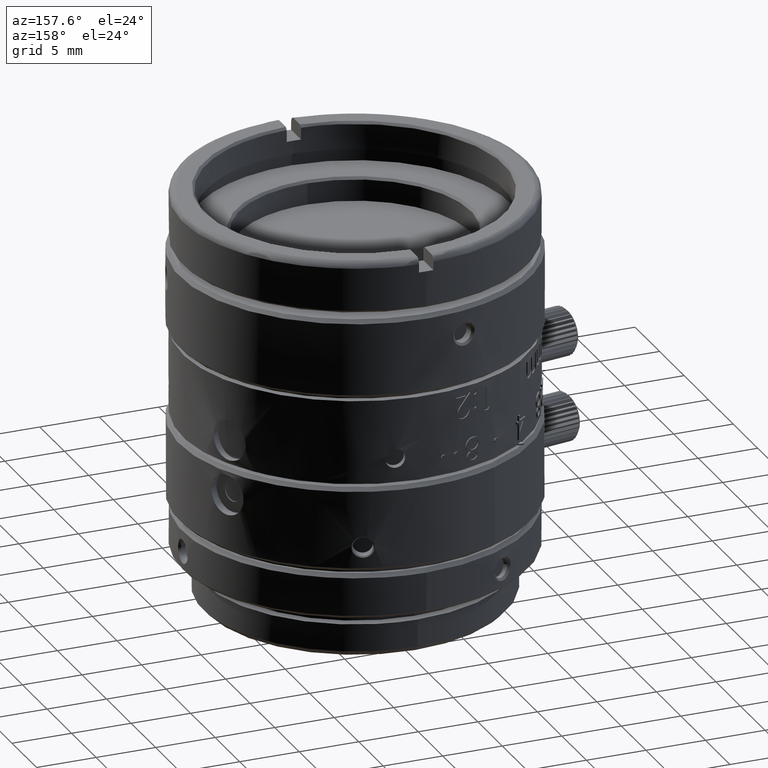
[diagram: clean part render]
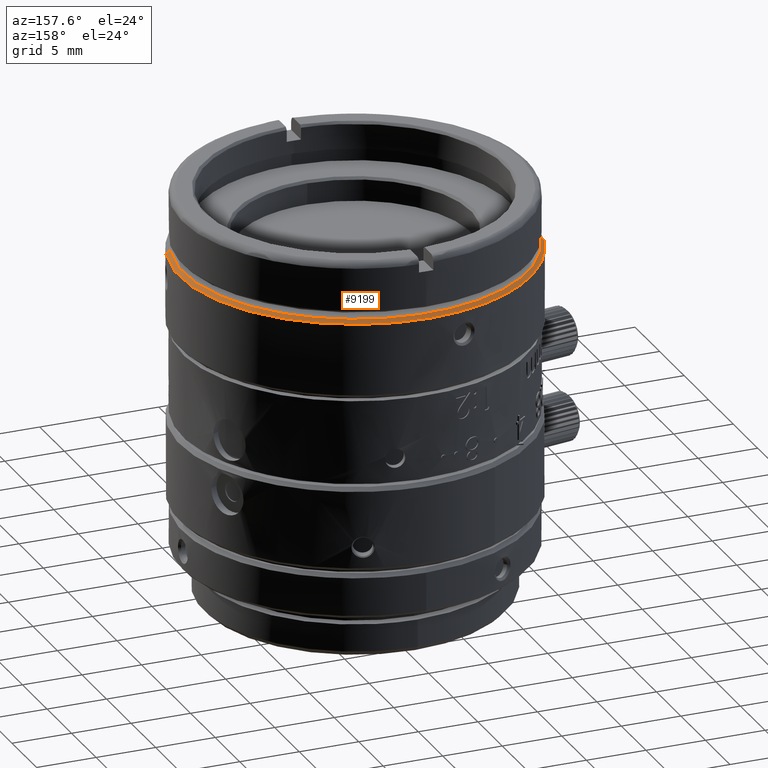
[diagram: same view with one face highlighted and labeled with its STEP entity id]
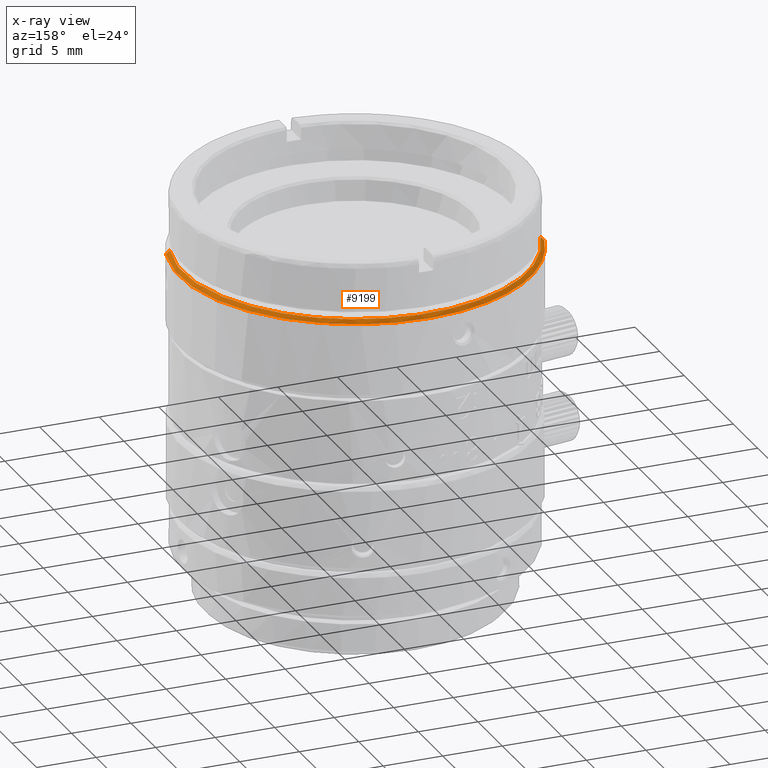
[diagram: x-ray of the same camera — body ghosted, the highlighted face saturated]
A machine part, auxiliary view. The second image highlights one B-rep face of the part: STEP entity #9199.
The next image is the same camera in x-ray: the body ghosted, the highlighted face saturated — about 0% of this face is hidden behind the body in this view.
In plain terms, the highlighted face is a freeform B-spline surface patch.
Its self-contained STEP definition (entity closure, byte-faithful):
#8 = CARTESIAN_POINT ( 'NONE',  ( 7.797692913417218818, 12.31186479710622095, 23.23932818800000533 ) ) ;
#114 = CARTESIAN_POINT ( 'NONE',  ( -14.08183630799999975, 4.389121345000000396, 22.93932818800000106 ) ) ;
#496 = CARTESIAN_POINT ( 'NONE',  ( 14.35872777375356080, -2.492582211443469475, 23.23932818800000177 ) ) ;
#555 = CARTESIAN_POINT ( 'NONE',  ( 14.08183630799999975, -4.389121345000000396, 22.93932818800000106 ) ) ;
#1329 = CARTESIAN_POINT ( 'NONE',  ( -14.08183630799999975, 4.389121345000000396, 22.93932818800000106 ) ) ;
#1711 = CARTESIAN_POINT ( 'NONE',  ( -13.79542607472903981, 4.299851083906274241, 23.23932818800000177 ) ) ;
#1837 = CARTESIAN_POINT ( 'NONE',  ( -5.303593609823979982, 32.55279394656484016, 22.93932818799985895 ) ) ;
#4672 = ORIENTED_EDGE ( 'NONE', *, *, #30504, .F. ) ;
#5674 = CARTESIAN_POINT ( 'NONE',  ( -5.195723906445872231, 31.89070322781336131, 23.23932818800000177 ) ) ;
#6608 = ORIENTED_EDGE ( 'NONE', *, *, #32638, .T. ) ;
#6736 = CARTESIAN_POINT ( 'NONE',  ( 6.107119945358272517, 13.23212436967600425, 23.23932818800000177 ) ) ;
#6807 = CARTESIAN_POINT ( 'NONE',  ( 13.79542607616231997, -4.299851079307800639, 23.23932818800000177 ) ) ;
#7233 = CARTESIAN_POINT ( 'NONE',  ( 14.56198250560596463, -0.5785283576510616976, 23.23932818800000177 ) ) ;
#9199 = ADVANCED_FACE ( 'NONE', ( #34006 ), #11372, .F. ) ;
#9466 = B_SPLINE_CURVE_WITH_KNOTS ( 'NONE', 3,
 ( #6807, #496, #7233, #13304, #26101, #38899, #22951, #8, #6736, #25811, #34638, #22259, #12395, #22663, #38619, #12610, #35475, #29176 ),
 .UNSPECIFIED., .F., .F.,
 ( 4, 2, 2, 2, 2, 2, 2, 2, 4 ),
 ( 5.981041535991919567, 6.373740617690645038, 6.766439699389369622, 7.159138781088095094, 7.551837862786820565, 7.944536944485545149, 8.337236026184271509, 8.729935107882996093, 9.122634189581720676 ),
 .UNSPECIFIED. ) ;
#11372 =( BOUNDED_SURFACE ( )  B_SPLINE_SURFACE ( 1, 3, ( 
 ( #24545, #5674, #30448, #11963 ),
 ( #24345, #18452, #37767, #21405 ) ),
 .UNSPECIFIED., .F., .F., .T. ) 
 B_SPLINE_SURFACE_WITH_KNOTS ( ( 2, 2 ),
 ( 4, 4 ),
 ( 0.0000000000000000000, 1.000000000000035971 ),
 ( 0.0000000000000000000, 1.000000000000000000 ),
 .UNSPECIFIED. ) 
 GEOMETRIC_REPRESENTATION_ITEM ( )  RATIONAL_B_SPLINE_SURFACE ( (
 ( 1.000000000000000000, 0.3333333334700690487, 0.3333333334700690487, 1.000000000000000000),
 ( 1.000000000000000000, 0.3333333334700690487, 0.3333333334700690487, 1.000000000000000000) ) ) 
 REPRESENTATION_ITEM ( '' )  SURFACE ( )  );
#11963 = CARTESIAN_POINT ( 'NONE',  ( 13.79542607800000020, -4.299851080999997244, 23.23932818800000177 ) ) ;
#12336 =( BOUNDED_CURVE ( )  B_SPLINE_CURVE ( 3, ( #36697, #30196, #1837, #21147 ),
 .UNSPECIFIED., .F., .T. ) 
 B_SPLINE_CURVE_WITH_KNOTS ( ( 4, 4 ),
 ( -9.122634189624410084, -5.981041536034619632 ),
 .UNSPECIFIED. ) 
 CURVE ( )  GEOMETRIC_REPRESENTATION_ITEM ( )  RATIONAL_B_SPLINE_CURVE ( ( 1.000000000000000000, 0.3333333335299309419, 0.3333333335299309419, 1.000000000000000000 ) ) 
 REPRESENTATION_ITEM ( '' )  );
#12395 = CARTESIAN_POINT ( 'NONE',  ( -5.038138971473953731, 13.67491079682256228, 23.23932818800000177 ) ) ;
#12610 = CARTESIAN_POINT ( 'NONE',  ( -12.31186479710633996, 7.797692913417070493, 23.23932818800000888 ) ) ;
#13147 = CARTESIAN_POINT ( 'NONE',  ( 13.79542607616231997, -4.299851079307800639, 23.23932818800000177 ) ) ;
#13267 = CARTESIAN_POINT ( 'NONE',  ( 14.08183630799999975, -4.389121345000000396, 22.93932818800000106 ) ) ;
#13304 = CARTESIAN_POINT ( 'NONE',  ( 14.21960464707033012, 3.192001539765421558, 23.23932818800000533 ) ) ;
#14043 = VERTEX_POINT ( 'NONE', #13267 ) ;
#17483 = CARTESIAN_POINT ( 'NONE',  ( -13.79542607472903981, 4.299851083906274241, 23.23932818800000177 ) ) ;
#18452 = CARTESIAN_POINT ( 'NONE',  ( -5.303593608247518354, 32.55279395162262546, 22.93932818800000106 ) ) ;
#18916 = ORIENTED_EDGE ( 'NONE', *, *, #37309, .T. ) ;
#21147 = CARTESIAN_POINT ( 'NONE',  ( -14.08183630799999975, 4.389121345000000396, 22.93932818800000106 ) ) ;
#21405 = CARTESIAN_POINT ( 'NONE',  ( 14.08183630800000152, -4.389121344999996843, 22.93932818800000106 ) ) ;
#22259 = CARTESIAN_POINT ( 'NONE',  ( -3.192001539765626728, 14.21960464707031591, 23.23932818800000888 ) ) ;
#22663 = CARTESIAN_POINT ( 'NONE',  ( -8.390631977163836908, 11.91567558389933090, 23.23932818799999822 ) ) ;
#22951 = CARTESIAN_POINT ( 'NONE',  ( 10.70595790652467372, 9.887795277642577929, 23.23932818800000177 ) ) ;
#24345 = CARTESIAN_POINT ( 'NONE',  ( -14.08183630619955196, 4.389121350776465924, 22.93932818800000106 ) ) ;
#24545 = CARTESIAN_POINT ( 'NONE',  ( -13.79542607623617201, 4.299851086658978971, 23.23932818800000177 ) ) ;
#25517 = VERTEX_POINT ( 'NONE', #114 ) ;
#25811 = CARTESIAN_POINT ( 'NONE',  ( 2.492582211443470364, 14.35872777375356790, 23.23932818799999822 ) ) ;
#26010 = EDGE_LOOP ( 'NONE', ( #4672, #6608, #18916, #36638 ) ) ;
#26101 = CARTESIAN_POINT ( 'NONE',  ( 13.67491079682254096, 5.038138971473987482, 23.23932818800000177 ) ) ;
#26212 = B_SPLINE_CURVE_WITH_KNOTS ( 'NONE', 1,
 ( #1329, #17483 ),
 .UNSPECIFIED., .F., .F.,
 ( 2, 2 ),
 ( -1.000000000000000000, 0.0000000000000000000 ),
 .UNSPECIFIED. ) ;
#27787 = B_SPLINE_CURVE_WITH_KNOTS ( 'NONE', 1,
 ( #13147, #555 ),
 .UNSPECIFIED., .F., .F.,
 ( 2, 2 ),
 ( -1.000000000000000000, 0.0000000000000000000 ),
 .UNSPECIFIED. ) ;
#29176 = CARTESIAN_POINT ( 'NONE',  ( -13.79542607472903981, 4.299851083906274241, 23.23932818800000177 ) ) ;
#30196 = CARTESIAN_POINT ( 'NONE',  ( 22.86007898855307019, 23.77455125849462547, 22.93932818800000106 ) ) ;
#30448 = CARTESIAN_POINT ( 'NONE',  ( 22.39512823647233475, 23.29100106368203882, 23.23932818800000177 ) ) ;
#30504 = EDGE_CURVE ( 'NONE', #40958, #40047, #9466, .T. ) ;
#32638 = EDGE_CURVE ( 'NONE', #40958, #14043, #27787, .T. ) ;
#34006 = FACE_OUTER_BOUND ( 'NONE', #26010, .T. ) ;
#34638 = CARTESIAN_POINT ( 'NONE',  ( 0.5785283576512666448, 14.56198250560598062, 23.23932818800000177 ) ) ;
#35475 = CARTESIAN_POINT ( 'NONE',  ( -13.23212436967605932, 6.107119945358093105, 23.23932818800000177 ) ) ;
#35970 = EDGE_CURVE ( 'NONE', #25517, #40047, #26212, .T. ) ;
#36638 = ORIENTED_EDGE ( 'NONE', *, *, #35970, .T. ) ;
#36697 = CARTESIAN_POINT ( 'NONE',  ( 14.08183630799999975, -4.389121345000000396, 22.93932818800000106 ) ) ;
#37309 = EDGE_CURVE ( 'NONE', #14043, #25517, #12336, .T. ) ;
#37767 = CARTESIAN_POINT ( 'NONE',  ( 22.86007899439909608, 23.77455125944706182, 22.93932818800000106 ) ) ;
#38619 = CARTESIAN_POINT ( 'NONE',  ( -9.887795277642455360, 10.70595790652482648, 23.23932818800000177 ) ) ;
#38899 = CARTESIAN_POINT ( 'NONE',  ( 11.91567558389934867, 8.390631977163803157, 23.23932818800000533 ) ) ;
#40047 = VERTEX_POINT ( 'NONE', #1711 ) ;
#40469 = CARTESIAN_POINT ( 'NONE',  ( 13.79542607616231997, -4.299851079307800639, 23.23932818800000177 ) ) ;
#40958 = VERTEX_POINT ( 'NONE', #40469 ) ;